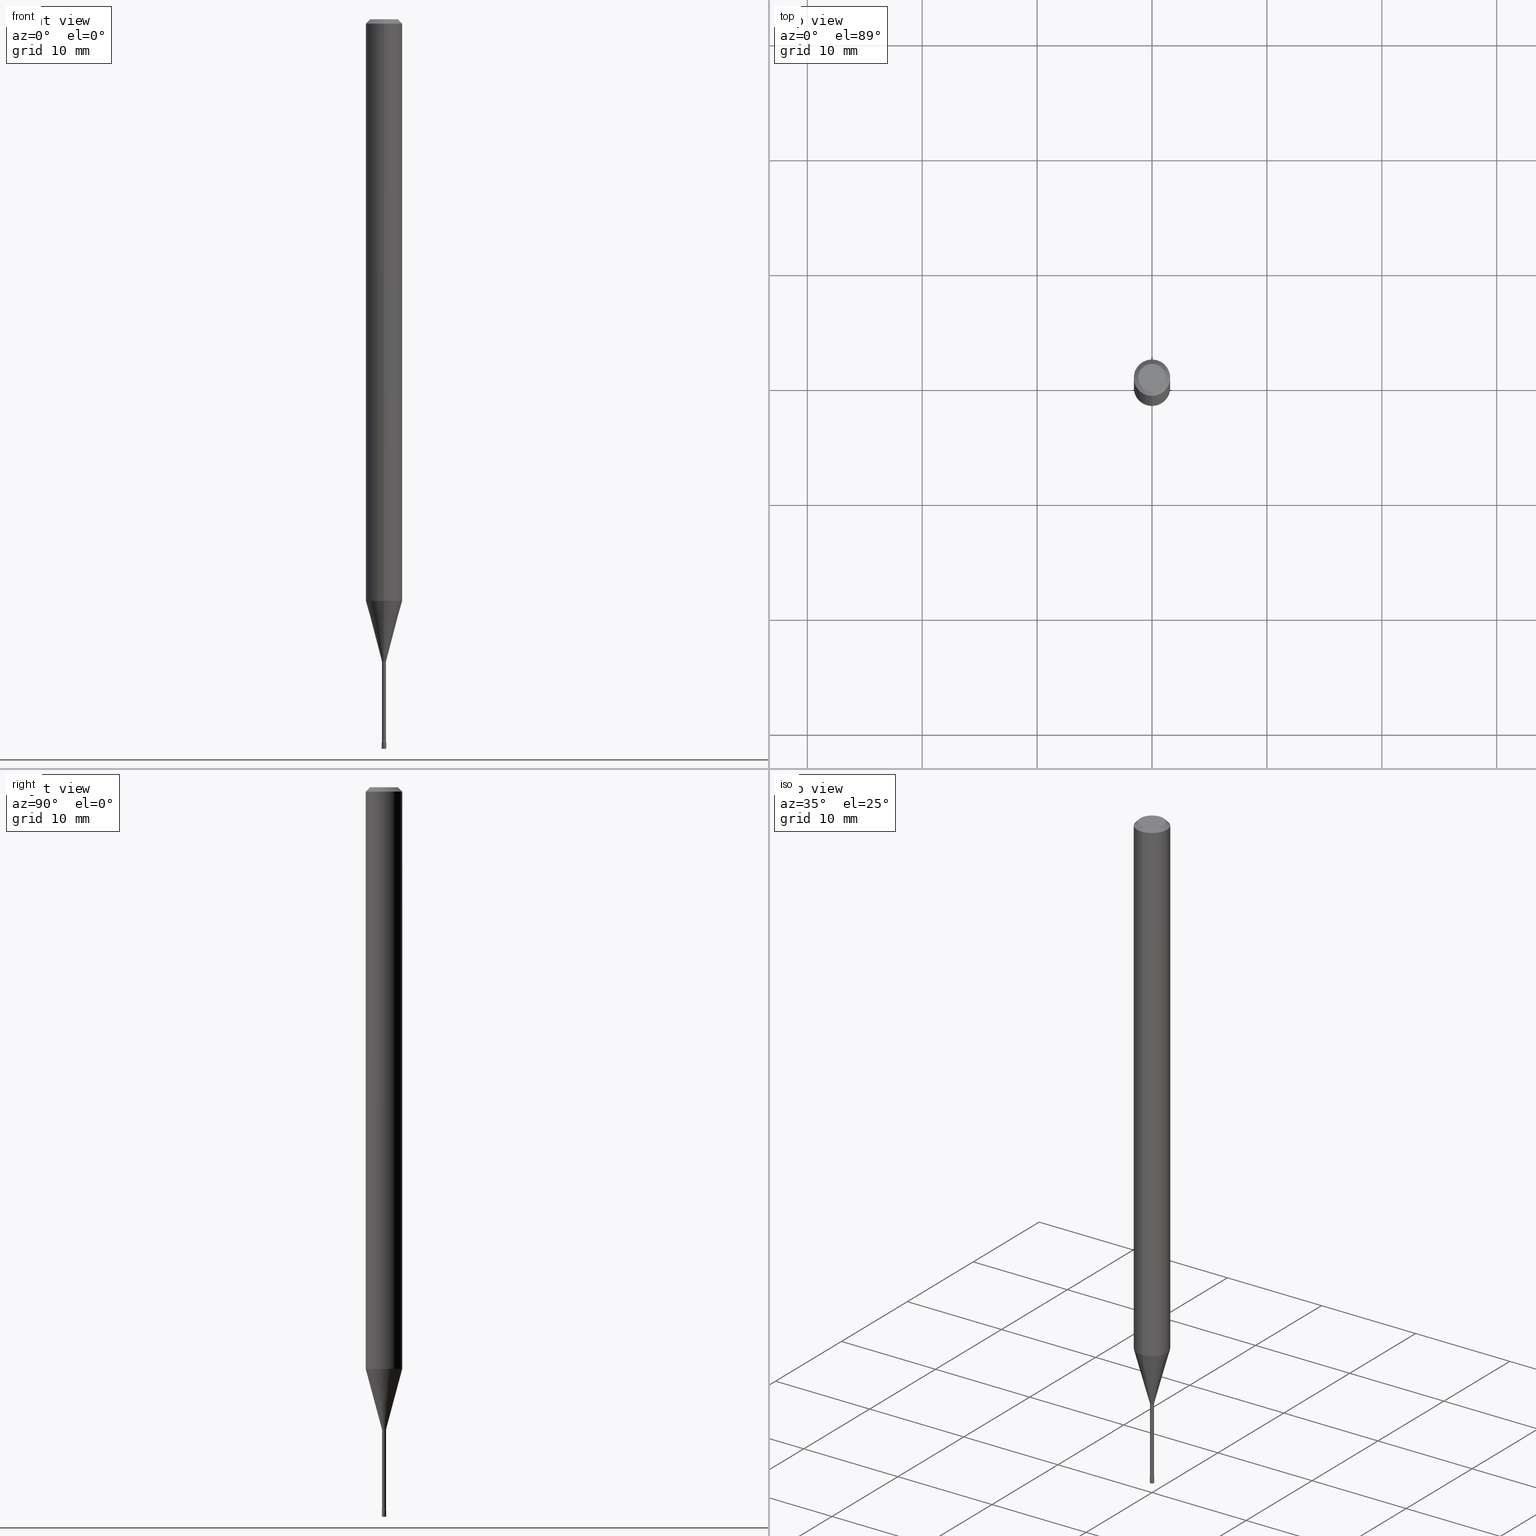
[diagram: canonical four-view strip — front | top / right | iso, engineering-drawing reading convention]
A machine part, canonical four-view strip (front | top / right | iso — engineering-drawing reading convention). The complete STEP part file that produces these views, byte-faithful:
ISO-10303-21;
HEADER;
FILE_DESCRIPTION (( 'STEP AP203' ),
    '1' );
FILE_NAME ('03644.STEP',
    '2024-03-08T22:18:49',
    ( '' ),
    ( '' ),
    'SwSTEP 2.0',
    'SolidWorks 2023',
    '' );
FILE_SCHEMA (( 'CONFIG_CONTROL_DESIGN' ));
ENDSEC;

DATA;
#1 = AXIS2_PLACEMENT_3D ( 'NONE', #24, #99, #15 ) ;
#2 = FACE_OUTER_BOUND ( 'NONE', #182, .T. ) ;
#3 = EDGE_LOOP ( 'NONE', ( #38, #379, #512, #483 ) ) ;
#4 = PERSON_AND_ORGANIZATION_ROLE ( 'classification_officer' ) ;
#5 = DIRECTION ( 'NONE',  ( -1.000000000000000000, 6.982962677686265922E-15, -4.883557194083112340E-29 ) ) ;
#6 = CARTESIAN_POINT ( 'NONE',  ( -4.364351673553912750E-16, -0.06250000000000005551, -0.01499999999999981209 ) ) ;
#7 = ORIENTED_EDGE ( 'NONE', *, *, #375, .T. ) ;
#8 = SECURITY_CLASSIFICATION_LEVEL ( 'unclassified' ) ;
#9 = DIRECTION ( 'NONE',  ( -6.982962677686265133E-15, -1.000000000000000000, 3.491470308445154620E-15 ) ) ;
#10 = AXIS2_PLACEMENT_3D ( 'NONE', #161, #46, #44 ) ;
#11 = LOCAL_TIME ( 17, 18, 49.00000000000000000, #481 ) ;
#12 = ORIENTED_EDGE ( 'NONE', *, *, #368, .T. ) ;
#13 = CARTESIAN_POINT ( 'NONE',  ( 5.375383577006393680E-29, -7.674574705206191997E-15, -2.198092501787273001 ) ) ;
#14 = VERTEX_POINT ( 'NONE', #146 ) ;
#15 = DIRECTION ( 'NONE',  ( -6.982962677686265922E-15, -1.000000000000000000, 3.491470308445154620E-15 ) ) ;
#16 = CC_DESIGN_DATE_AND_TIME_ASSIGNMENT ( #87, #293, ( #410 ) ) ;
#17 = ORIENTED_EDGE ( 'NONE', *, *, #449, .F. ) ;
#18 = EDGE_CURVE ( 'NONE', #304, #89, #359, .T. ) ;
#19 = PLANE ( 'NONE',  #452 ) ;
#20 = CIRCLE ( 'NONE', #418, 0.007499999999999999722 ) ;
#21 = ORIENTED_EDGE ( 'NONE', *, *, #160, .F. ) ;
#22 = FACE_OUTER_BOUND ( 'NONE', #415, .T. ) ;
#23 = DIRECTION ( 'NONE',  ( 7.105427357601001859E-15, 1.000000000000000000, 0.000000000000000000 ) ) ;
#24 = CARTESIAN_POINT ( 'NONE',  ( 6.048508650603792991E-29, -8.635667332170297409E-15, -2.473353426265656907 ) ) ;
#25 = ORIENTED_EDGE ( 'NONE', *, *, #101, .F. ) ;
#26 = DIRECTION ( 'NONE',  ( -2.445476508670885484E-29, 3.491470308445154620E-15, 1.000000000000000000 ) ) ;
#27 = ORIENTED_EDGE ( 'NONE', *, *, #433, .F. ) ;
#28 = AXIS2_PLACEMENT_3D ( 'NONE', #411, #486, #448 ) ;
#29 = DIRECTION ( 'NONE',  ( -4.851104656540964275E-15, -0.7071067811865500152, -0.7071067811865450192 ) ) ;
#30 = DIRECTION ( 'NONE',  ( -2.445476508670885484E-29, 3.491470308445154620E-15, 1.000000000000000000 ) ) ;
#31 = DIRECTION ( 'NONE',  ( 1.000000000000000000, 0.000000000000000000, 0.000000000000000000 ) ) ;
#32 = CIRCLE ( 'NONE', #83, 0.06250000000000000000 ) ;
#33 = EDGE_CURVE ( 'NONE', #150, #363, #175, .T. ) ;
#34 = CC_DESIGN_APPROVAL ( #343, ( #410 ) ) ;
#35 =( CONVERSION_BASED_UNIT ( 'INCH', #475 ) LENGTH_UNIT ( ) NAMED_UNIT ( #337 ) );
#36 = PRODUCT_DEFINITION_FORMATION_WITH_SPECIFIED_SOURCE ( 'ANY', '', #466, .NOT_KNOWN. ) ;
#37 = LINE ( 'NONE', #441, #156 ) ;
#38 = ORIENTED_EDGE ( 'NONE', *, *, #430, .T. ) ;
#39 = CARTESIAN_POINT ( 'NONE',  ( -1.539743270429219122E-16, -0.02205000000000867030, -2.473353426265656907 ) ) ;
#40 = PERSON_AND_ORGANIZATION ( #473, #484 ) ;
#41 = AXIS2_PLACEMENT_3D ( 'NONE', #465, #377, #97 ) ;
#42 = DIRECTION ( 'NONE',  ( -2.445476508670885484E-29, 3.491470308445154620E-15, 1.000000000000000000 ) ) ;
#43 = AXIS2_PLACEMENT_3D ( 'NONE', #424, #420, #217 ) ;
#44 = DIRECTION ( 'NONE',  ( 1.000000000000000000, -6.982962677686267499E-15, 4.876176775795936353E-29 ) ) ;
#45 = PERSON_AND_ORGANIZATION ( #473, #484 ) ;
#46 = DIRECTION ( 'NONE',  ( -2.445468806185136597E-29, 3.491481338843145583E-15, 1.000000000000000000 ) ) ;
#47 = ORIENTED_EDGE ( 'NONE', *, *, #33, .T. ) ;
#48 = APPROVAL_STATUS ( 'not_yet_approved' ) ;
#49 = DIRECTION ( 'NONE',  ( -6.982962677686265133E-15, -1.000000000000000000, 0.000000000000000000 ) ) ;
#50 = CIRCLE ( 'NONE', #41, 0.007499999999999999722 ) ;
#51 = VECTOR ( 'NONE', #437, 39.37007874015748143 ) ;
#52 = VERTEX_POINT ( 'NONE', #121 ) ;
#53 = ADVANCED_FACE ( 'NONE', ( #310 ), #322, .F. ) ;
#54 = FACE_OUTER_BOUND ( 'NONE', #334, .T. ) ;
#55 = EDGE_LOOP ( 'NONE', ( #331, #67, #132, #423 ) ) ;
#56 = LINE ( 'NONE', #214, #176 ) ;
#57 = EDGE_CURVE ( 'NONE', #382, #173, #227, .T. ) ;
#58 = ORIENTED_EDGE ( 'NONE', *, *, #139, .F. ) ;
#59 = CARTESIAN_POINT ( 'NONE',  ( 2.489070731061760237E-16, 0.007561112605656305531, -2.198092501787273001 ) ) ;
#60 = CONICAL_SURFACE ( 'NONE', #155, 0.06250000000000000000, 0.7853981633974483900 ) ;
#61 = ORIENTED_EDGE ( 'NONE', *, *, #210, .F. ) ;
#62 = CARTESIAN_POINT ( 'NONE',  ( 5.384877615428316026E-29, -7.688129590374725326E-15, -2.201974787463810923 ) ) ;
#63 = ORIENTED_EDGE ( 'NONE', *, *, #450, .T. ) ;
#64 = CARTESIAN_POINT ( 'NONE',  ( 5.329070518206814949E-17, 0.007499999999991363402, -2.476999999999999869 ) ) ;
#65 = DIRECTION ( 'NONE',  ( 1.000000000000000000, -7.105427357601001070E-15, 4.926315373458666476E-29 ) ) ;
#66 = LINE ( 'NONE', #352, #119 ) ;
#67 = ORIENTED_EDGE ( 'NONE', *, *, #433, .T. ) ;
#68 = AXIS2_PLACEMENT_3D ( 'NONE', #255, #26, #253 ) ;
#69 = CIRCLE ( 'NONE', #43, 0.01500000000000002373 ) ;
#70 = DIRECTION ( 'NONE',  ( -2.445468806185136877E-29, 3.491481338843145188E-15, 1.000000000000000000 ) ) ;
#71 = ADVANCED_FACE ( 'NONE', ( #224 ), #390, .T. ) ;
#72 = DIRECTION ( 'NONE',  ( -6.982962677686265922E-15, -1.000000000000000000, 3.491470308445154620E-15 ) ) ;
#73 = CIRCLE ( 'NONE', #459, 0.007050000000000007649 ) ;
#74 = CC_DESIGN_SECURITY_CLASSIFICATION ( #410, ( #36 ) ) ;
#75 = LINE ( 'NONE', #518, #309 ) ;
#76 = CARTESIAN_POINT ( 'NONE',  ( -4.922988687768820639E-17, -0.007050000000000005047, 2.461486567453835702E-17 ) ) ;
#77 = PERSON_AND_ORGANIZATION ( #473, #484 ) ;
#78 = CARTESIAN_POINT ( 'NONE',  ( 6.057445311977782920E-29, -8.648371954018647761E-15, -2.476999999999999869 ) ) ;
#79 = EDGE_CURVE ( 'NONE', #292, #96, #73, .T. ) ;
#80 = EDGE_CURVE ( 'NONE', #256, #89, #491, .T. ) ;
#81 = MANIFOLD_SOLID_BREP ( 'Body-Move/Copy2[1]', #508 ) ;
#82 = FACE_OUTER_BOUND ( 'NONE', #159, .T. ) ;
#83 = AXIS2_PLACEMENT_3D ( 'NONE', #369, #454, #133 ) ;
#84 = PRODUCT_DEFINITION ( 'UNKNOWN', '', #36, #301 ) ;
#85 = CARTESIAN_POINT ( 'NONE',  ( 6.057426232920582713E-29, -8.648399276314471045E-15, -2.476999999999999869 ) ) ;
#86 = AXIS2_PLACEMENT_3D ( 'NONE', #384, #266, #174 ) ;
#87 = DATE_AND_TIME ( #246, #427 ) ;
#88 = CARTESIAN_POINT ( 'NONE',  ( -5.237222008258651565E-17, -0.007500000000008659462, -2.476999999999999869 ) ) ;
#89 = VERTEX_POINT ( 'NONE', #264 ) ;
#90 = PERSON_AND_ORGANIZATION_ROLE ( 'creator' ) ;
#91 = DIRECTION ( 'NONE',  ( -6.982962677686265922E-15, -1.000000000000000000, 0.000000000000000000 ) ) ;
#92 = EDGE_CURVE ( 'NONE', #96, #292, #492, .T. ) ;
#93 = ORIENTED_EDGE ( 'NONE', *, *, #18, .F. ) ;
#94 = CARTESIAN_POINT ( 'NONE',  ( 4.440892098501112297E-16, 0.06249999999999304029, -1.993057782720306426 ) ) ;
#95 = AXIS2_PLACEMENT_3D ( 'NONE', #131, #490, #296 ) ;
#96 = VERTEX_POINT ( 'NONE', #314 ) ;
#97 = DIRECTION ( 'NONE',  ( 1.000000000000000000, -6.982962677686268288E-15, 0.000000000000000000 ) ) ;
#98 = ORIENTED_EDGE ( 'NONE', *, *, #396, .T. ) ;
#99 = DIRECTION ( 'NONE',  ( -2.445476508670885484E-29, 3.491470308445154620E-15, 1.000000000000000000 ) ) ;
#100 = ORIENTED_EDGE ( 'NONE', *, *, #160, .T. ) ;
#101 = EDGE_CURVE ( 'NONE', #292, #52, #438, .T. ) ;
#102 = DIRECTION ( 'NONE',  ( 2.438088387897960049E-29, -3.491481338843145188E-15, -1.000000000000000000 ) ) ;
#103 = AXIS2_PLACEMENT_3D ( 'NONE', #413, #370, #488 ) ;
#104 = CARTESIAN_POINT ( 'NONE',  ( 3.668214763006335565E-31, -5.237205462667742604E-17, -0.01500000000000003067 ) ) ;
#105 = DIRECTION ( 'NONE',  ( -6.982962677686265133E-15, -1.000000000000000000, 0.000000000000000000 ) ) ;
#106 = ORIENTED_EDGE ( 'NONE', *, *, #300, .T. ) ;
#107 =( NAMED_UNIT ( * ) SI_UNIT ( $, .STERADIAN. ) SOLID_ANGLE_UNIT ( ) );
#108 = DIRECTION ( 'NONE',  ( -2.445476508670885484E-29, 3.491470308445154620E-15, 1.000000000000000000 ) ) ;
#109 = CC_DESIGN_DATE_AND_TIME_ASSIGNMENT ( #485, #120, ( #84 ) ) ;
#110 = EDGE_CURVE ( 'NONE', #196, #206, #323, .T. ) ;
#111 = VERTEX_POINT ( 'NONE', #124 ) ;
#112 = TOROIDAL_SURFACE ( 'NONE', #86, 0.02205000000000003485, 0.01500000000000002547 ) ;
#113 = AXIS2_PLACEMENT_3D ( 'NONE', #187, #236, #401 ) ;
#114 = DIRECTION ( 'NONE',  ( -2.445476508670885484E-29, 3.491470308445154620E-15, 1.000000000000000000 ) ) ;
#115 = EDGE_CURVE ( 'NONE', #382, #111, #383, .T. ) ;
#116 = ADVANCED_FACE ( 'NONE', ( #240 ), #458, .T. ) ;
#117 = CARTESIAN_POINT ( 'NONE',  ( -0.007499999999999999722, -8.635260606529160038E-15, -2.476999999999999869 ) ) ;
#118 = VECTOR ( 'NONE', #335, 39.37007874015748143 ) ;
#119 = VECTOR ( 'NONE', #195, 39.37007874015748143 ) ;
#120 = DATE_TIME_ROLE ( 'creation_date' ) ;
#121 = CARTESIAN_POINT ( 'NONE',  ( -4.922988687763432966E-17, -0.007050000000007689872, -2.201974787463810923 ) ) ;
#122 = COORDINATED_UNIVERSAL_TIME_OFFSET ( 5, 0, .BEHIND. ) ;
#123 = DIRECTION ( 'NONE',  ( -2.445468806185136597E-29, 3.491481338843145583E-15, 1.000000000000000000 ) ) ;
#124 = CARTESIAN_POINT ( 'NONE',  ( -5.279896712708096815E-17, -0.007561112605671654364, -2.198092501787273001 ) ) ;
#125 = ADVANCED_FACE ( 'NONE', ( #374 ), #417, .T. ) ;
#126 = CALENDAR_DATE ( 2024, 8, 3 ) ;
#127 = CARTESIAN_POINT ( 'NONE',  ( 0.007499999999999999722, -8.781075567190511627E-15, -2.500000000000000000 ) ) ;
#128 = APPROVAL_PERSON_ORGANIZATION ( #40, #366, #412 ) ;
#129 = ORIENTED_EDGE ( 'NONE', *, *, #507, .F. ) ;
#130 = APPROVAL_ROLE ( '' ) ;
#131 = CARTESIAN_POINT ( 'NONE',  ( 3.316907271900976096E-16, 0.04749999999999999362, -1.803020570870316272E-16 ) ) ;
#132 = ORIENTED_EDGE ( 'NONE', *, *, #300, .F. ) ;
#133 = DIRECTION ( 'NONE',  ( -6.982962677686265922E-15, -1.000000000000000000, 4.370956789862821150E-15 ) ) ;
#134 = ORIENTED_EDGE ( 'NONE', *, *, #282, .F. ) ;
#135 = CIRCLE ( 'NONE', #510, 0.007499999999999999722 ) ;
#136 = ORIENTED_EDGE ( 'NONE', *, *, #430, .F. ) ;
#137 = CARTESIAN_POINT ( 'NONE',  ( -4.922988687762774144E-17, -0.007050000000008643103, -2.473353426265656907 ) ) ;
#138 = ORIENTED_EDGE ( 'NONE', *, *, #115, .T. ) ;
#139 = EDGE_CURVE ( 'NONE', #304, #462, #32, .T. ) ;
#140 = CYLINDRICAL_SURFACE ( 'NONE', #68, 0.06250000000000000000 ) ;
#141 = CARTESIAN_POINT ( 'NONE',  ( 6.048527701573310727E-29, -8.635640050097633401E-15, -2.473353426265656907 ) ) ;
#142 = EDGE_CURVE ( 'NONE', #363, #150, #482, .T. ) ;
#143 = DIRECTION ( 'NONE',  ( -2.445476508670885484E-29, 3.491470308445155014E-15, 1.000000000000000000 ) ) ;
#144 = TOROIDAL_SURFACE ( 'NONE', #443, 0.02205000000000000016, 0.01500000000000002547 ) ;
#145 = CIRCLE ( 'NONE', #502, 0.007561112605663979948 ) ;
#146 = CARTESIAN_POINT ( 'NONE',  ( 0.007499999999999999722, -8.700771496397117730E-15, -2.476999999999999869 ) ) ;
#147 = DIRECTION ( 'NONE',  ( -2.445476508670885484E-29, 3.491470308445154620E-15, 1.000000000000000000 ) ) ;
#148 = DIRECTION ( 'NONE',  ( -2.445476508670885484E-29, 3.491470308445154620E-15, 1.000000000000000000 ) ) ;
#149 = DIRECTION ( 'NONE',  ( -2.445476508670885484E-29, 3.491470308445154620E-15, 1.000000000000000000 ) ) ;
#150 = VERTEX_POINT ( 'NONE', #88 ) ;
#151 = ADVANCED_FACE ( 'NONE', ( #2 ), #333, .F. ) ;
#152 = AXIS2_PLACEMENT_3D ( 'NONE', #39, #5, #248 ) ;
#153 = APPROVAL_PERSON_ORGANIZATION ( #200, #516, #130 ) ;
#154 = DIRECTION ( 'NONE',  ( -6.982962677686265922E-15, -1.000000000000000000, 0.000000000000000000 ) ) ;
#155 = AXIS2_PLACEMENT_3D ( 'NONE', #456, #243, #203 ) ;
#156 = VECTOR ( 'NONE', #274, 39.37007874015748854 ) ;
#157 = PERSON_AND_ORGANIZATION_ROLE ( 'creator' ) ;
#158 = CARTESIAN_POINT ( 'NONE',  ( 7.070957124041654008E-46, -1.009538908402686154E-31, -2.891443487177357558E-17 ) ) ;
#159 = EDGE_LOOP ( 'NONE', ( #17, #21, #7, #350 ) ) ;
#160 = EDGE_CURVE ( 'NONE', #206, #196, #436, .T. ) ;
#161 = CARTESIAN_POINT ( 'NONE',  ( 0.000000000000000000, 0.000000000000000000, 0.000000000000000000 ) ) ;
#162 = DATE_AND_TIME ( #453, #235 ) ;
#163 = CARTESIAN_POINT ( 'NONE',  ( 7.070957124041654008E-46, -1.009538908402686154E-31, -2.891443487177357558E-17 ) ) ;
#164 = ORIENTED_EDGE ( 'NONE', *, *, #142, .F. ) ;
#165 = CIRCLE ( 'NONE', #199, 0.007499999999999999722 ) ;
#166 = CC_DESIGN_PERSON_AND_ORGANIZATION_ASSIGNMENT ( #328, #157, ( #84 ) ) ;
#167 = CC_DESIGN_APPROVAL ( #516, ( #36 ) ) ;
#168 = CARTESIAN_POINT ( 'NONE',  ( 6.113672015462842613E-29, -8.728703347107864943E-15, -2.500000000000000000 ) ) ;
#169 = EDGE_LOOP ( 'NONE', ( #509, #306, #186, #497 ) ) ;
#170 = CARTESIAN_POINT ( 'NONE',  ( 6.057445311977782920E-29, -8.648371954018647761E-15, -2.476999999999999869 ) ) ;
#171 = ORIENTED_EDGE ( 'NONE', *, *, #290, .F. ) ;
#172 = DIRECTION ( 'NONE',  ( -2.445476508670885484E-29, 3.491470308445154620E-15, 1.000000000000000000 ) ) ;
#173 = VERTEX_POINT ( 'NONE', #365 ) ;
#174 = DIRECTION ( 'NONE',  ( -6.982962677686265922E-15, -1.000000000000000000, 3.491470308445154620E-15 ) ) ;
#175 = CIRCLE ( 'NONE', #391, 0.007499999999999999722 ) ;
#176 = VECTOR ( 'NONE', #222, 39.37007874015748143 ) ;
#177 = EDGE_CURVE ( 'NONE', #292, #150, #371, .T. ) ;
#178 = ORIENTED_EDGE ( 'NONE', *, *, #33, .F. ) ;
#179 = CARTESIAN_POINT ( 'NONE',  ( 5.237222008270812965E-17, 0.007499999999991270594, -2.500000000000000000 ) ) ;
#180 = EDGE_LOOP ( 'NONE', ( #251, #345, #340, #302 ) ) ;
#181 = DIRECTION ( 'NONE',  ( -6.982962677686265922E-15, -1.000000000000000000, 3.491470308445154620E-15 ) ) ;
#182 = EDGE_LOOP ( 'NONE', ( #100, #432 ) ) ;
#183 = FACE_OUTER_BOUND ( 'NONE', #326, .T. ) ;
#184 = CC_DESIGN_PERSON_AND_ORGANIZATION_ASSIGNMENT ( #367, #90, ( #36 ) ) ;
#185 = AXIS2_PLACEMENT_3D ( 'NONE', #472, #283, #445 ) ;
#186 = ORIENTED_EDGE ( 'NONE', *, *, #80, .T. ) ;
#187 = CARTESIAN_POINT ( 'NONE',  ( 0.000000000000000000, 0.000000000000000000, 0.000000000000000000 ) ) ;
#188 = VERTEX_POINT ( 'NONE', #127 ) ;
#189 = APPLICATION_PROTOCOL_DEFINITION ( 'international standard', 'config_control_design', 1994, #197 ) ;
#190 = MECHANICAL_CONTEXT ( 'NONE', #197, 'mechanical' ) ;
#191 = AXIS2_PLACEMENT_3D ( 'NONE', #267, #65, #23 ) ;
#192 = AXIS2_PLACEMENT_3D ( 'NONE', #308, #389, #339 ) ;
#193 = EDGE_CURVE ( 'NONE', #173, #52, #409, .T. ) ;
#194 = CONICAL_SURFACE ( 'NONE', #470, 0.007561112605663979948, 0.2617993877991498519 ) ;
#195 = DIRECTION ( 'NONE',  ( -2.445468806185136877E-29, 3.491481338843145188E-15, 1.000000000000000000 ) ) ;
#196 = VERTEX_POINT ( 'NONE', #205 ) ;
#197 = APPLICATION_CONTEXT ( 'configuration controlled 3d designs of mechanical parts and assemblies' ) ;
#198 = LINE ( 'NONE', #327, #354 ) ;
#199 = AXIS2_PLACEMENT_3D ( 'NONE', #168, #123, #361 ) ;
#200 = PERSON_AND_ORGANIZATION ( #473, #484 ) ;
#201 = DIRECTION ( 'NONE',  ( -2.445476508670885484E-29, 3.491470308445154620E-15, 1.000000000000000000 ) ) ;
#202 = PERSON_AND_ORGANIZATION_ROLE ( 'design_owner' ) ;
#203 = DIRECTION ( 'NONE',  ( 6.982962677686265922E-15, 1.000000000000000000, -3.483106191921935554E-15 ) ) ;
#204 = APPROVAL_STATUS ( 'not_yet_approved' ) ;
#205 = CARTESIAN_POINT ( 'NONE',  ( -3.773273898774340269E-16, -0.04749999999999999362, 1.369304047793712484E-16 ) ) ;
#206 = VERTEX_POINT ( 'NONE', #291 ) ;
#207 = AXIS2_PLACEMENT_3D ( 'NONE', #285, #42, #9 ) ;
#208 = COORDINATED_UNIVERSAL_TIME_OFFSET ( 5, 0, .BEHIND. ) ;
#209 = DIRECTION ( 'NONE',  ( -2.445476508670885484E-29, 3.491470308445154620E-15, 1.000000000000000000 ) ) ;
#210 = EDGE_CURVE ( 'NONE', #419, #14, #20, .T. ) ;
#211 = ORIENTED_EDGE ( 'NONE', *, *, #79, .F. ) ;
#212 = CARTESIAN_POINT ( 'NONE',  ( -4.364351673553916201E-16, -0.06250000000000000000, 2.182168942778221391E-16 ) ) ;
#213 = ORIENTED_EDGE ( 'NONE', *, *, #215, .T. ) ;
#214 = CARTESIAN_POINT ( 'NONE',  ( 4.364351673553919652E-16, 0.06249999999999995143, -0.01500000000000024751 ) ) ;
#215 = EDGE_CURVE ( 'NONE', #96, #173, #198, .T. ) ;
#216 = ORIENTED_EDGE ( 'NONE', *, *, #210, .T. ) ;
#217 = DIRECTION ( 'NONE',  ( 7.105427357601001859E-15, 1.000000000000000000, 0.000000000000000000 ) ) ;
#218 =( GEOMETRIC_REPRESENTATION_CONTEXT ( 3 ) GLOBAL_UNCERTAINTY_ASSIGNED_CONTEXT ( ( #378 ) ) GLOBAL_UNIT_ASSIGNED_CONTEXT ( ( #35, #358, #107 ) ) REPRESENTATION_CONTEXT ( 'NONE', 'WORKASPACE' ) );
#219 = ORIENTED_EDGE ( 'NONE', *, *, #18, .T. ) ;
#220 = DIRECTION ( 'NONE',  ( -2.445476508670885484E-29, 3.491470308445154620E-15, 1.000000000000000000 ) ) ;
#221 = ORIENTED_EDGE ( 'NONE', *, *, #79, .T. ) ;
#222 = DIRECTION ( 'NONE',  ( 4.937700262164548042E-15, 0.7071067811865451302, -0.7071067811865499042 ) ) ;
#223 = EDGE_CURVE ( 'NONE', #188, #388, #165, .T. ) ;
#224 = FACE_OUTER_BOUND ( 'NONE', #455, .T. ) ;
#225 = LINE ( 'NONE', #277, #355 ) ;
#226 = VECTOR ( 'NONE', #237, 39.37007874015748143 ) ;
#227 = CIRCLE ( 'NONE', #191, 0.01500000000000002373 ) ;
#228 = APPROVAL_PERSON_ORGANIZATION ( #77, #343, #242 ) ;
#229 = CARTESIAN_POINT ( 'NONE',  ( 4.440892098500625669E-16, 0.06250000000000000000, -2.182168942778221391E-16 ) ) ;
#230 = EDGE_CURVE ( 'NONE', #462, #304, #426, .T. ) ;
#231 = CARTESIAN_POINT ( 'NONE',  ( 5.375383577006393680E-29, -7.674574705206191997E-15, -2.198092501787273001 ) ) ;
#232 = DIRECTION ( 'NONE',  ( 0.000000000000000000, 0.000000000000000000, 1.000000000000000000 ) ) ;
#233 = ADVANCED_FACE ( 'NONE', ( #294 ), #287, .T. ) ;
#234 = AXIS2_PLACEMENT_3D ( 'NONE', #299, #503, #387 ) ;
#235 = LOCAL_TIME ( 17, 18, 49.00000000000000000, #122 ) ;
#236 = DIRECTION ( 'NONE',  ( -2.445468806185136597E-29, 3.491481338843145583E-15, 1.000000000000000000 ) ) ;
#237 = DIRECTION ( 'NONE',  ( -2.445476508670885484E-29, 3.491470308445155014E-15, 1.000000000000000000 ) ) ;
#238 = ORIENTED_EDGE ( 'NONE', *, *, #101, .T. ) ;
#239 = APPROVAL_DATE_TIME ( #162, #516 ) ;
#240 = FACE_OUTER_BOUND ( 'NONE', #346, .T. ) ;
#241 = ADVANCED_FACE ( 'NONE', ( #82 ), #60, .T. ) ;
#242 = APPROVAL_ROLE ( '' ) ;
#243 = DIRECTION ( 'NONE',  ( 2.445476508670885484E-29, -3.491470308445154620E-15, -1.000000000000000000 ) ) ;
#244 = AXIS2_PLACEMENT_3D ( 'NONE', #163, #201, #498 ) ;
#245 = CC_DESIGN_APPROVAL ( #366, ( #84 ) ) ;
#246 = CALENDAR_DATE ( 2024, 8, 3 ) ;
#247 = CARTESIAN_POINT ( 'NONE',  ( 5.384877615428316026E-29, -7.688129590374725326E-15, -2.201974787463810923 ) ) ;
#248 = DIRECTION ( 'NONE',  ( -6.982962677686266711E-15, -1.000000000000000000, 0.000000000000000000 ) ) ;
#249 = ORIENTED_EDGE ( 'NONE', *, *, #142, .T. ) ;
#250 = DIRECTION ( 'NONE',  ( -2.445476508670885484E-29, 3.491470308445155014E-15, 1.000000000000000000 ) ) ;
#251 = ORIENTED_EDGE ( 'NONE', *, *, #115, .F. ) ;
#252 = AXIS2_PLACEMENT_3D ( 'NONE', #13, #329, #49 ) ;
#253 = DIRECTION ( 'NONE',  ( -6.982962677686265922E-15, -1.000000000000000000, 3.491470308445154226E-15 ) ) ;
#254 = ORIENTED_EDGE ( 'NONE', *, *, #177, .T. ) ;
#255 = CARTESIAN_POINT ( 'NONE',  ( 0.000000000000000000, 0.000000000000000000, 0.000000000000000000 ) ) ;
#256 = VERTEX_POINT ( 'NONE', #6 ) ;
#257 = FACE_OUTER_BOUND ( 'NONE', #403, .T. ) ;
#258 = ORIENTED_EDGE ( 'NONE', *, *, #80, .F. ) ;
#259 = AXIS2_PLACEMENT_3D ( 'NONE', #435, #30, #514 ) ;
#260 = DIRECTION ( 'NONE',  ( -1.000000000000000000, 6.982962677686265922E-15, -4.876176775795935793E-29 ) ) ;
#261 = AXIS2_PLACEMENT_3D ( 'NONE', #231, #114, #357 ) ;
#262 = LOCAL_TIME ( 17, 18, 49.00000000000000000, #208 ) ;
#263 = EDGE_CURVE ( 'NONE', #89, #256, #468, .T. ) ;
#264 = CARTESIAN_POINT ( 'NONE',  ( 4.440892098501117228E-16, 0.06249999999999995837, -0.01500000000000024751 ) ) ;
#265 = ADVANCED_FACE ( 'NONE', ( #257 ), #317, .F. ) ;
#266 = DIRECTION ( 'NONE',  ( -2.445476508670885484E-29, 3.491470308445154620E-15, 1.000000000000000000 ) ) ;
#267 = CARTESIAN_POINT ( 'NONE',  ( 1.566746732351558825E-16, 0.02204999999999231186, -2.201974787463810923 ) ) ;
#268 = CARTESIAN_POINT ( 'NONE',  ( -5.279896712708096815E-17, -0.007561112605671654364, -2.198092501787273001 ) ) ;
#269 = ADVANCED_FACE ( 'NONE', ( #22 ), #341, .T. ) ;
#270 = DIRECTION ( 'NONE',  ( -6.982962677686265922E-15, -1.000000000000000000, 3.483106191921935554E-15 ) ) ;
#271 = AXIS2_PLACEMENT_3D ( 'NONE', #247, #325, #406 ) ;
#272 = CIRCLE ( 'NONE', #400, 0.01500000000000002373 ) ;
#273 = DIRECTION ( 'NONE',  ( -2.445476508670885484E-29, 3.491470308445154620E-15, 1.000000000000000000 ) ) ;
#274 = DIRECTION ( 'NONE',  ( 1.839019923739597160E-15, 0.2588190451025245142, 0.9659258262890670910 ) ) ;
#275 = ADVANCED_FACE ( 'NONE', ( #428 ), #144, .F. ) ;
#276 = DIRECTION ( 'NONE',  ( -6.982962677686265133E-15, -1.000000000000000000, 0.000000000000000000 ) ) ;
#277 = CARTESIAN_POINT ( 'NONE',  ( -0.007499999999999999722, 5.329070518200751197E-17, -3.689201317691179266E-31 ) ) ;
#278 = CLOSED_SHELL ( 'NONE', ( #402, #116, #356, #233, #311, #407, #351, #71, #241, #151, #53, #265, #380, #275 ) ) ;
#279 = VECTOR ( 'NONE', #143, 39.37007874015748143 ) ;
#280 = PRODUCT_RELATED_PRODUCT_CATEGORY ( 'detail', '', ( #466 ) ) ;
#281 = AXIS2_PLACEMENT_3D ( 'NONE', #381, #147, #312 ) ;
#282 = EDGE_CURVE ( 'NONE', #388, #188, #135, .T. ) ;
#283 = DIRECTION ( 'NONE',  ( -2.445476508670885204E-29, 3.491470308445155014E-15, 1.000000000000000000 ) ) ;
#284 = PERSON_AND_ORGANIZATION_ROLE ( 'design_supplier' ) ;
#285 = CARTESIAN_POINT ( 'NONE',  ( 0.000000000000000000, 0.000000000000000000, 0.000000000000000000 ) ) ;
#286 = DIRECTION ( 'NONE',  ( -2.445468806185136597E-29, 3.491481338843145583E-15, 1.000000000000000000 ) ) ;
#287 = CONICAL_SURFACE ( 'NONE', #28, 0.06250000000000000000, 0.7853981633974483900 ) ;
#288 = LOCAL_TIME ( 17, 18, 49.00000000000000000, #360 ) ;
#289 = APPROVAL_DATE_TIME ( #520, #366 ) ;
#290 = EDGE_CURVE ( 'NONE', #462, #256, #471, .T. ) ;
#291 = CARTESIAN_POINT ( 'NONE',  ( 3.840629472727447874E-16, 0.04749999999999999362, -1.947592745229184119E-16 ) ) ;
#292 = VERTEX_POINT ( 'NONE', #137 ) ;
#293 = DATE_TIME_ROLE ( 'classification_date' ) ;
#294 = FACE_OUTER_BOUND ( 'NONE', #169, .T. ) ;
#295 = ORIENTED_EDGE ( 'NONE', *, *, #263, .F. ) ;
#296 = DIRECTION ( 'NONE',  ( 6.982962677686265922E-15, 1.000000000000000000, -3.491470308445155014E-15 ) ) ;
#297 = EDGE_LOOP ( 'NONE', ( #464, #12, #249, #336 ) ) ;
#298 = CONICAL_SURFACE ( 'NONE', #261, 0.007561112605663979948, 0.2617993877991498519 ) ;
#299 = CARTESIAN_POINT ( 'NONE',  ( 3.668214763006335565E-31, -5.237205462667742604E-17, -0.01500000000000003067 ) ) ;
#300 = EDGE_CURVE ( 'NONE', #14, #419, #50, .T. ) ;
#301 = DESIGN_CONTEXT ( 'detailed design', #439, 'design' ) ;
#302 = ORIENTED_EDGE ( 'NONE', *, *, #450, .F. ) ;
#303 = FACE_OUTER_BOUND ( 'NONE', #342, .T. ) ;
#304 = VERTEX_POINT ( 'NONE', #94 ) ;
#305 = FACE_OUTER_BOUND ( 'NONE', #297, .T. ) ;
#306 = ORIENTED_EDGE ( 'NONE', *, *, #449, .T. ) ;
#307 = AXIS2_PLACEMENT_3D ( 'NONE', #158, #209, #408 ) ;
#308 = CARTESIAN_POINT ( 'NONE',  ( 6.057426232920582713E-29, -8.648399276314471045E-15, -2.476999999999999869 ) ) ;
#309 = VECTOR ( 'NONE', #29, 39.37007874015748143 ) ;
#310 = FACE_OUTER_BOUND ( 'NONE', #501, .T. ) ;
#311 = ADVANCED_FACE ( 'NONE', ( #303 ), #140, .T. ) ;
#312 = DIRECTION ( 'NONE',  ( -6.982962677686265133E-15, -1.000000000000000000, 3.491470308445154620E-15 ) ) ;
#313 = ORIENTED_EDGE ( 'NONE', *, *, #404, .T. ) ;
#314 = CARTESIAN_POINT ( 'NONE',  ( 5.169198402660792758E-17, 0.007049999999991373063, -2.473353426265656907 ) ) ;
#315 = ADVANCED_BREP_SHAPE_REPRESENTATION ( '03644', ( #81, #447, #493 ), #218 ) ;
#316 = CYLINDRICAL_SURFACE ( 'NONE', #113, 0.007499999999999999722 ) ;
#317 = TOROIDAL_SURFACE ( 'NONE', #1, 0.02205000000000003485, 0.01500000000000002547 ) ;
#318 = AXIS2_PLACEMENT_3D ( 'NONE', #398, #442, #72 ) ;
#319 = FACE_OUTER_BOUND ( 'NONE', #180, .T. ) ;
#320 = LINE ( 'NONE', #268, #51 ) ;
#321 = CALENDAR_DATE ( 2024, 8, 3 ) ;
#322 = PLANE ( 'NONE',  #185 ) ;
#323 = CIRCLE ( 'NONE', #244, 0.04749999999999999362 ) ;
#324 = SHAPE_DEFINITION_REPRESENTATION ( #496, #315 ) ;
#325 = DIRECTION ( 'NONE',  ( -2.445476508670885484E-29, 3.491470308445154620E-15, 1.000000000000000000 ) ) ;
#326 = EDGE_LOOP ( 'NONE', ( #386, #421, #238, #376 ) ) ;
#327 = CARTESIAN_POINT ( 'NONE',  ( 5.009326287108708664E-17, 0.007050000000000005047, -2.461486567453835702E-17 ) ) ;
#328 = PERSON_AND_ORGANIZATION ( #473, #484 ) ;
#329 = DIRECTION ( 'NONE',  ( -2.445476508670885484E-29, 3.491470308445154620E-15, 1.000000000000000000 ) ) ;
#330 = AXIS2_PLACEMENT_3D ( 'NONE', #170, #495, #91 ) ;
#331 = ORIENTED_EDGE ( 'NONE', *, *, #223, .T. ) ;
#332 = CALENDAR_DATE ( 2024, 8, 3 ) ;
#333 = PLANE ( 'NONE',  #95 ) ;
#334 = EDGE_LOOP ( 'NONE', ( #460, #134 ) ) ;
#335 = DIRECTION ( 'NONE',  ( -2.445476508670885484E-29, 3.491470308445155014E-15, 1.000000000000000000 ) ) ;
#336 = ORIENTED_EDGE ( 'NONE', *, *, #177, .F. ) ;
#337 = DIMENSIONAL_EXPONENTS ( 1.000000000000000000, 0.000000000000000000, 0.000000000000000000, 0.000000000000000000, 0.000000000000000000, 0.000000000000000000, 0.000000000000000000 ) ;
#338 = EDGE_CURVE ( 'NONE', #52, #173, #362, .T. ) ;
#339 = DIRECTION ( 'NONE',  ( 1.000000000000000000, -6.982962677686265922E-15, 4.876176775795935793E-29 ) ) ;
#340 = ORIENTED_EDGE ( 'NONE', *, *, #193, .T. ) ;
#341 = PLANE ( 'NONE',  #192 ) ;
#342 = EDGE_LOOP ( 'NONE', ( #519, #219, #258, #171 ) ) ;
#343 = APPROVAL ( #489, 'UNSPECIFIED' ) ;
#344 = DIRECTION ( 'NONE',  ( -2.445468806185136597E-29, 3.491481338843145583E-15, 1.000000000000000000 ) ) ;
#345 = ORIENTED_EDGE ( 'NONE', *, *, #57, .T. ) ;
#346 = EDGE_LOOP ( 'NONE', ( #221, #213, #457, #25 ) ) ;
#347 = AXIS2_PLACEMENT_3D ( 'NONE', #104, #108, #270 ) ;
#348 = CYLINDRICAL_SURFACE ( 'NONE', #281, 0.007050000000000005047 ) ;
#349 = EDGE_LOOP ( 'NONE', ( #476, #136, #63, #499 ) ) ;
#350 = ORIENTED_EDGE ( 'NONE', *, *, #263, .T. ) ;
#351 = ADVANCED_FACE ( 'NONE', ( #431 ), #194, .T. ) ;
#352 = CARTESIAN_POINT ( 'NONE',  ( 0.007499999999999999722, -5.237222008264700526E-17, 3.657132581846952195E-31 ) ) ;
#353 = DIRECTION ( 'NONE',  ( -6.982962677686266711E-15, -1.000000000000000000, 0.000000000000000000 ) ) ;
#354 = VECTOR ( 'NONE', #250, 39.37007874015748143 ) ;
#355 = VECTOR ( 'NONE', #70, 39.37007874015748143 ) ;
#356 = ADVANCED_FACE ( 'NONE', ( #305 ), #112, .F. ) ;
#357 = DIRECTION ( 'NONE',  ( -6.982962677686265133E-15, -1.000000000000000000, 0.000000000000000000 ) ) ;
#358 =( NAMED_UNIT ( * ) PLANE_ANGLE_UNIT ( ) SI_UNIT ( $, .RADIAN. ) );
#359 = LINE ( 'NONE', #229, #226 ) ;
#360 = COORDINATED_UNIVERSAL_TIME_OFFSET ( 5, 0, .BEHIND. ) ;
#361 = DIRECTION ( 'NONE',  ( 1.000000000000000000, -6.982962677686268288E-15, 0.000000000000000000 ) ) ;
#362 = CIRCLE ( 'NONE', #477, 0.007050000000000001578 ) ;
#363 = VERTEX_POINT ( 'NONE', #64 ) ;
#364 = DATE_AND_TIME ( #332, #262 ) ;
#365 = CARTESIAN_POINT ( 'NONE',  ( 5.009326287114761323E-17, 0.007049999999992312416, -2.201974787463810923 ) ) ;
#366 = APPROVAL ( #48, 'UNSPECIFIED' ) ;
#367 = PERSON_AND_ORGANIZATION ( #473, #484 ) ;
#368 = EDGE_CURVE ( 'NONE', #96, #363, #69, .T. ) ;
#369 = CARTESIAN_POINT ( 'NONE',  ( 4.873975988066190610E-29, -6.958702071383483423E-15, -1.993057782720306204 ) ) ;
#370 = DIRECTION ( 'NONE',  ( -2.445476508670885484E-29, 3.491470308445154620E-15, 1.000000000000000000 ) ) ;
#371 = CIRCLE ( 'NONE', #152, 0.01500000000000002373 ) ;
#372 = ORIENTED_EDGE ( 'NONE', *, *, #368, .F. ) ;
#373 = APPROVAL_DATE_TIME ( #364, #343 ) ;
#374 = FACE_OUTER_BOUND ( 'NONE', #425, .T. ) ;
#375 = EDGE_CURVE ( 'NONE', #206, #89, #56, .T. ) ;
#376 = ORIENTED_EDGE ( 'NONE', *, *, #193, .F. ) ;
#377 = DIRECTION ( 'NONE',  ( -2.445468806185136597E-29, 3.491481338843145583E-15, 1.000000000000000000 ) ) ;
#378 = UNCERTAINTY_MEASURE_WITH_UNIT (LENGTH_MEASURE( 1.000000000000000082E-05 ), #35, 'distance_accuracy_value', 'NONE');
#379 = ORIENTED_EDGE ( 'NONE', *, *, #507, .T. ) ;
#380 = ADVANCED_FACE ( 'NONE', ( #183 ), #348, .T. ) ;
#381 = CARTESIAN_POINT ( 'NONE',  ( 0.000000000000000000, 0.000000000000000000, 0.000000000000000000 ) ) ;
#382 = VERTEX_POINT ( 'NONE', #59 ) ;
#383 = CIRCLE ( 'NONE', #252, 0.007561112605663979948 ) ;
#384 = CARTESIAN_POINT ( 'NONE',  ( 6.048508650603792991E-29, -8.635667332170297409E-15, -2.473353426265656907 ) ) ;
#385 = ADVANCED_FACE ( 'NONE', ( #54 ), #19, .T. ) ;
#386 = ORIENTED_EDGE ( 'NONE', *, *, #215, .F. ) ;
#387 = DIRECTION ( 'NONE',  ( -6.982962677686265922E-15, -1.000000000000000000, 3.483106191921935554E-15 ) ) ;
#388 = VERTEX_POINT ( 'NONE', #478 ) ;
#389 = DIRECTION ( 'NONE',  ( -2.438088387897960049E-29, 3.491481338843145188E-15, 1.000000000000000000 ) ) ;
#390 = CYLINDRICAL_SURFACE ( 'NONE', #517, 0.06250000000000000000 ) ;
#391 = AXIS2_PLACEMENT_3D ( 'NONE', #78, #273, #154 ) ;
#392 = FACE_OUTER_BOUND ( 'NONE', #55, .T. ) ;
#393 = CC_DESIGN_PERSON_AND_ORGANIZATION_ASSIGNMENT ( #45, #202, ( #466 ) ) ;
#394 = TOROIDAL_SURFACE ( 'NONE', #318, 0.02205000000000000016, 0.01500000000000002547 ) ;
#395 = DIRECTION ( 'NONE',  ( -6.982962677686265922E-15, -1.000000000000000000, 3.491470308445154226E-15 ) ) ;
#396 = EDGE_CURVE ( 'NONE', #188, #14, #66, .T. ) ;
#397 = DIRECTION ( 'NONE',  ( -1.000000000000000000, 6.982962677686265922E-15, -4.883557194083112340E-29 ) ) ;
#398 = CARTESIAN_POINT ( 'NONE',  ( 5.384860654748895550E-29, -7.688153879032997927E-15, -2.201974787463810923 ) ) ;
#399 =( LENGTH_UNIT ( ) NAMED_UNIT ( * ) SI_UNIT ( $, .METRE. ) );
#400 = AXIS2_PLACEMENT_3D ( 'NONE', #515, #397, #353 ) ;
#401 = DIRECTION ( 'NONE',  ( 1.000000000000000000, -6.982962677686267499E-15, 4.876176775795936353E-29 ) ) ;
#402 = ADVANCED_FACE ( 'NONE', ( #319 ), #394, .F. ) ;
#403 = EDGE_LOOP ( 'NONE', ( #372, #211, #254, #47 ) ) ;
#404 = EDGE_CURVE ( 'NONE', #111, #462, #320, .T. ) ;
#405 = EDGE_LOOP ( 'NONE', ( #129, #138, #313, #58 ) ) ;
#406 = DIRECTION ( 'NONE',  ( -6.982962677686265133E-15, -1.000000000000000000, 0.000000000000000000 ) ) ;
#407 = ADVANCED_FACE ( 'NONE', ( #434 ), #298, .T. ) ;
#408 = DIRECTION ( 'NONE',  ( -6.982962677686266711E-15, -1.000000000000000000, 3.491470308445155014E-15 ) ) ;
#409 = CIRCLE ( 'NONE', #271, 0.007050000000000001578 ) ;
#410 = SECURITY_CLASSIFICATION ( '', '', #8 ) ;
#411 = CARTESIAN_POINT ( 'NONE',  ( 3.668214763006335565E-31, -5.237205462667742604E-17, -0.01500000000000003067 ) ) ;
#412 = APPROVAL_ROLE ( '' ) ;
#413 = CARTESIAN_POINT ( 'NONE',  ( 4.873975988066190610E-29, -6.958702071383483423E-15, -1.993057782720306204 ) ) ;
#414 = CC_DESIGN_PERSON_AND_ORGANIZATION_ASSIGNMENT ( #444, #284, ( #36 ) ) ;
#415 = EDGE_LOOP ( 'NONE', ( #106, #216 ) ) ;
#416 = APPLICATION_PROTOCOL_DEFINITION ( 'international standard', 'config_control_design', 1994, #439 ) ;
#417 = CYLINDRICAL_SURFACE ( 'NONE', #10, 0.007499999999999999722 ) ;
#418 = AXIS2_PLACEMENT_3D ( 'NONE', #85, #286, #451 ) ;
#419 = VERTEX_POINT ( 'NONE', #117 ) ;
#420 = DIRECTION ( 'NONE',  ( 1.000000000000000000, -7.105427357601001070E-15, 4.926315373458666476E-29 ) ) ;
#421 = ORIENTED_EDGE ( 'NONE', *, *, #92, .T. ) ;
#422 = CARTESIAN_POINT ( 'NONE',  ( 5.375383577006393680E-29, -7.674574705206191997E-15, -2.198092501787273001 ) ) ;
#423 = ORIENTED_EDGE ( 'NONE', *, *, #396, .F. ) ;
#424 = CARTESIAN_POINT ( 'NONE',  ( 1.566746732351627851E-16, 0.02204999999999139940, -2.473353426265656907 ) ) ;
#425 = EDGE_LOOP ( 'NONE', ( #27, #504, #98, #61 ) ) ;
#426 = CIRCLE ( 'NONE', #103, 0.06250000000000000000 ) ;
#427 = LOCAL_TIME ( 17, 18, 49.00000000000000000, #487 ) ;
#428 = FACE_OUTER_BOUND ( 'NONE', #349, .T. ) ;
#429 = ORIENTED_EDGE ( 'NONE', *, *, #290, .T. ) ;
#430 = EDGE_CURVE ( 'NONE', #111, #382, #145, .T. ) ;
#431 = FACE_OUTER_BOUND ( 'NONE', #405, .T. ) ;
#432 = ORIENTED_EDGE ( 'NONE', *, *, #110, .T. ) ;
#433 = EDGE_CURVE ( 'NONE', #388, #419, #225, .T. ) ;
#434 = FACE_OUTER_BOUND ( 'NONE', #3, .T. ) ;
#435 = CARTESIAN_POINT ( 'NONE',  ( 6.048527701573310727E-29, -8.635640050097633401E-15, -2.473353426265656907 ) ) ;
#436 = CIRCLE ( 'NONE', #307, 0.04749999999999999362 ) ;
#437 = DIRECTION ( 'NONE',  ( -1.807323732225327378E-15, -0.2588190451025177974, 0.9659258262890690894 ) ) ;
#438 = LINE ( 'NONE', #76, #118 ) ;
#439 = APPLICATION_CONTEXT ( 'configuration controlled 3d designs of mechanical parts and assemblies' ) ;
#440 = CARTESIAN_POINT ( 'NONE',  ( 0.000000000000000000, 0.000000000000000000, 0.000000000000000000 ) ) ;
#441 = CARTESIAN_POINT ( 'NONE',  ( 5.372493636224038015E-17, 0.007561112605656304664, -2.198092501787273001 ) ) ;
#442 = DIRECTION ( 'NONE',  ( -2.445476508670885484E-29, 3.491470308445154620E-15, 1.000000000000000000 ) ) ;
#443 = AXIS2_PLACEMENT_3D ( 'NONE', #461, #172, #181 ) ;
#444 = PERSON_AND_ORGANIZATION ( #473, #484 ) ;
#445 = DIRECTION ( 'NONE',  ( -6.982962677686265922E-15, -1.000000000000000000, 3.491470308445155014E-15 ) ) ;
#446 = PERSON_AND_ORGANIZATION ( #473, #484 ) ;
#447 = MANIFOLD_SOLID_BREP ( 'Body-Move/Copy2[2]', #278 ) ;
#448 = DIRECTION ( 'NONE',  ( 6.982962677686265922E-15, 1.000000000000000000, -3.483106191921935554E-15 ) ) ;
#449 = EDGE_CURVE ( 'NONE', #196, #256, #75, .T. ) ;
#450 = EDGE_CURVE ( 'NONE', #111, #52, #272, .T. ) ;
#451 = DIRECTION ( 'NONE',  ( 1.000000000000000000, -6.982962677686268288E-15, 0.000000000000000000 ) ) ;
#452 = AXIS2_PLACEMENT_3D ( 'NONE', #179, #102, #260 ) ;
#453 = CALENDAR_DATE ( 2024, 8, 3 ) ;
#454 = DIRECTION ( 'NONE',  ( -2.445476508670885484E-29, 3.491470308445154620E-15, 1.000000000000000000 ) ) ;
#455 = EDGE_LOOP ( 'NONE', ( #93, #494, #429, #295 ) ) ;
#456 = CARTESIAN_POINT ( 'NONE',  ( 3.668214763006335565E-31, -5.237205462667742604E-17, -0.01500000000000003067 ) ) ;
#457 = ORIENTED_EDGE ( 'NONE', *, *, #338, .F. ) ;
#458 = CYLINDRICAL_SURFACE ( 'NONE', #207, 0.007050000000000005047 ) ;
#459 = AXIS2_PLACEMENT_3D ( 'NONE', #141, #467, #474 ) ;
#460 = ORIENTED_EDGE ( 'NONE', *, *, #223, .F. ) ;
#461 = CARTESIAN_POINT ( 'NONE',  ( 5.384860654748895550E-29, -7.688153879032997927E-15, -2.201974787463810923 ) ) ;
#462 = VERTEX_POINT ( 'NONE', #480 ) ;
#463 = DIRECTION ( 'NONE',  ( -2.445476508670885484E-29, 3.491470308445154620E-15, 1.000000000000000000 ) ) ;
#464 = ORIENTED_EDGE ( 'NONE', *, *, #92, .F. ) ;
#465 = CARTESIAN_POINT ( 'NONE',  ( 6.057426232920582713E-29, -8.648399276314471045E-15, -2.476999999999999869 ) ) ;
#466 = PRODUCT ( '03644', '03644', '', ( #190 ) ) ;
#467 = DIRECTION ( 'NONE',  ( -2.445476508670885484E-29, 3.491470308445154620E-15, 1.000000000000000000 ) ) ;
#468 = CIRCLE ( 'NONE', #234, 0.06250000000000000000 ) ;
#469 = ADVANCED_FACE ( 'NONE', ( #392 ), #316, .T. ) ;
#470 = AXIS2_PLACEMENT_3D ( 'NONE', #422, #463, #105 ) ;
#471 = LINE ( 'NONE', #212, #279 ) ;
#472 = CARTESIAN_POINT ( 'NONE',  ( 5.237222008270756882E-17, 0.007499999999991352126, -2.476999999999999869 ) ) ;
#473 = PERSON ( 'UNSPECIFIED', 'UNSPECIFIED', 'UNSPECIFIED', ('UNSPECIFIED'), ('UNSPECIFIED'), ('UNSPECIFIED') ) ;
#474 = DIRECTION ( 'NONE',  ( -6.982962677686265133E-15, -1.000000000000000000, 0.000000000000000000 ) ) ;
#475 = LENGTH_MEASURE_WITH_UNIT ( LENGTH_MEASURE( 0.02539999999999999897 ), #399 );
#476 = ORIENTED_EDGE ( 'NONE', *, *, #57, .F. ) ;
#477 = AXIS2_PLACEMENT_3D ( 'NONE', #62, #220, #500 ) ;
#478 = CARTESIAN_POINT ( 'NONE',  ( -0.007499999999999999722, -8.635260606529160038E-15, -2.500000000000000000 ) ) ;
#479 = CC_DESIGN_PERSON_AND_ORGANIZATION_ASSIGNMENT ( #446, #4, ( #410 ) ) ;
#480 = CARTESIAN_POINT ( 'NONE',  ( -4.364351673553429079E-16, -0.06250000000000695277, -1.993057782720305759 ) ) ;
#481 = COORDINATED_UNIVERSAL_TIME_OFFSET ( 5, 0, .BEHIND. ) ;
#482 = CIRCLE ( 'NONE', #330, 0.007499999999999999722 ) ;
#483 = ORIENTED_EDGE ( 'NONE', *, *, #404, .F. ) ;
#484 = ORGANIZATION ( 'UNSPECIFIED', 'UNSPECIFIED', '' ) ;
#485 = DATE_AND_TIME ( #126, #288 ) ;
#486 = DIRECTION ( 'NONE',  ( 2.445476508670885484E-29, -3.491470308445154620E-15, -1.000000000000000000 ) ) ;
#487 = COORDINATED_UNIVERSAL_TIME_OFFSET ( 5, 0, .BEHIND. ) ;
#488 = DIRECTION ( 'NONE',  ( -6.982962677686265922E-15, -1.000000000000000000, 4.370956789862821150E-15 ) ) ;
#489 = APPROVAL_STATUS ( 'not_yet_approved' ) ;
#490 = DIRECTION ( 'NONE',  ( 2.445476508670885204E-29, -3.491470308445155014E-15, -1.000000000000000000 ) ) ;
#491 = CIRCLE ( 'NONE', #347, 0.06250000000000000000 ) ;
#492 = CIRCLE ( 'NONE', #259, 0.007050000000000007649 ) ;
#493 = AXIS2_PLACEMENT_3D ( 'NONE', #440, #232, #31 ) ;
#494 = ORIENTED_EDGE ( 'NONE', *, *, #139, .T. ) ;
#495 = DIRECTION ( 'NONE',  ( -2.445476508670885484E-29, 3.491470308445154620E-15, 1.000000000000000000 ) ) ;
#496 = PRODUCT_DEFINITION_SHAPE ( 'NONE', 'NONE',  #84 ) ;
#497 = ORIENTED_EDGE ( 'NONE', *, *, #375, .F. ) ;
#498 = DIRECTION ( 'NONE',  ( -6.982962677686266711E-15, -1.000000000000000000, 3.491470308445155014E-15 ) ) ;
#499 = ORIENTED_EDGE ( 'NONE', *, *, #338, .T. ) ;
#500 = DIRECTION ( 'NONE',  ( -6.982962677686265133E-15, -1.000000000000000000, 0.000000000000000000 ) ) ;
#501 = EDGE_LOOP ( 'NONE', ( #178, #164 ) ) ;
#502 = AXIS2_PLACEMENT_3D ( 'NONE', #513, #149, #276 ) ;
#503 = DIRECTION ( 'NONE',  ( -2.445476508670885484E-29, 3.491470308445154620E-15, 1.000000000000000000 ) ) ;
#504 = ORIENTED_EDGE ( 'NONE', *, *, #282, .T. ) ;
#505 = DIRECTION ( 'NONE',  ( 1.000000000000000000, -6.982962677686268288E-15, 0.000000000000000000 ) ) ;
#506 = CARTESIAN_POINT ( 'NONE',  ( 0.000000000000000000, 0.000000000000000000, 0.000000000000000000 ) ) ;
#507 = EDGE_CURVE ( 'NONE', #382, #304, #37, .T. ) ;
#508 = CLOSED_SHELL ( 'NONE', ( #469, #269, #125, #385 ) ) ;
#509 = ORIENTED_EDGE ( 'NONE', *, *, #110, .F. ) ;
#510 = AXIS2_PLACEMENT_3D ( 'NONE', #511, #344, #505 ) ;
#511 = CARTESIAN_POINT ( 'NONE',  ( 6.113672015462842613E-29, -8.728703347107864943E-15, -2.500000000000000000 ) ) ;
#512 = ORIENTED_EDGE ( 'NONE', *, *, #230, .F. ) ;
#513 = CARTESIAN_POINT ( 'NONE',  ( 5.375383577006393680E-29, -7.674574705206191997E-15, -2.198092501787273001 ) ) ;
#514 = DIRECTION ( 'NONE',  ( -6.982962677686265133E-15, -1.000000000000000000, 0.000000000000000000 ) ) ;
#515 = CARTESIAN_POINT ( 'NONE',  ( -1.539743270429283217E-16, -0.02205000000000768845, -2.201974787463810923 ) ) ;
#516 = APPROVAL ( #204, 'UNSPECIFIED' ) ;
#517 = AXIS2_PLACEMENT_3D ( 'NONE', #506, #148, #395 ) ;
#518 = CARTESIAN_POINT ( 'NONE',  ( -4.287811248607203282E-16, -0.06250000000000005551, -0.01499999999999981209 ) ) ;
#519 = ORIENTED_EDGE ( 'NONE', *, *, #230, .T. ) ;
#520 = DATE_AND_TIME ( #321, #11 ) ;
ENDSEC;
END-ISO-10303-21;
